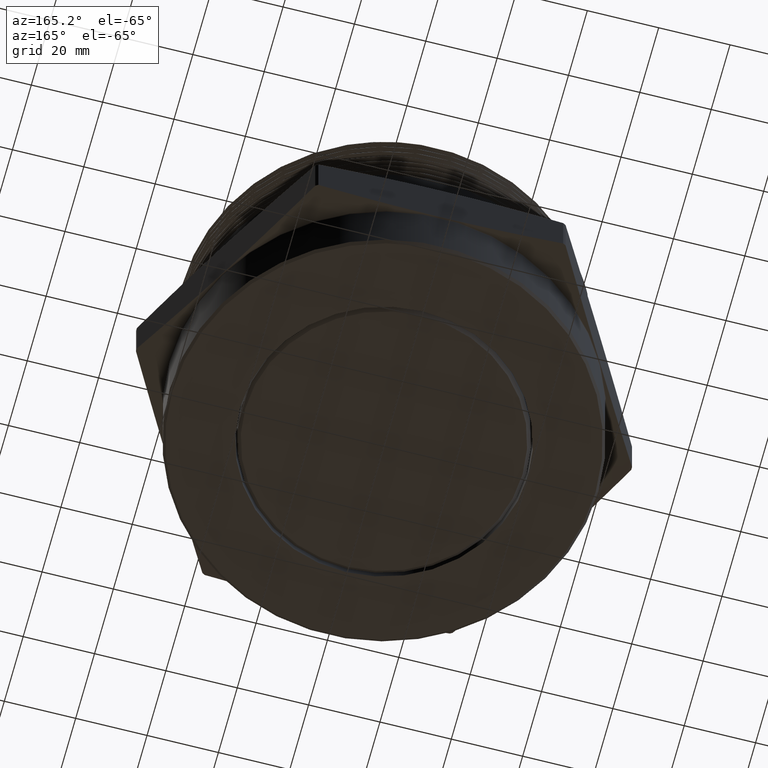
[diagram: clean part render]
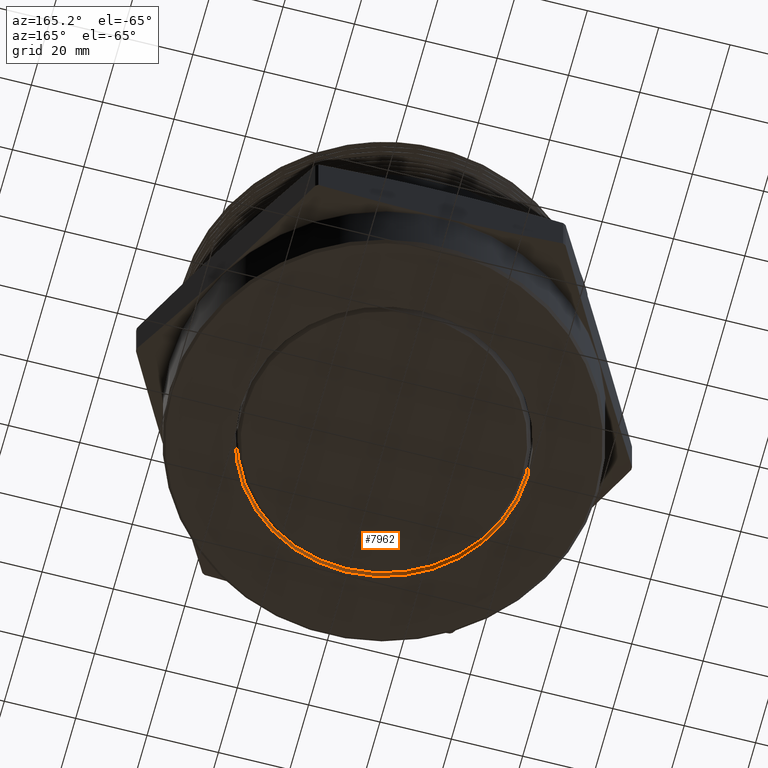
[diagram: same view with one face highlighted and labeled with its STEP entity id]
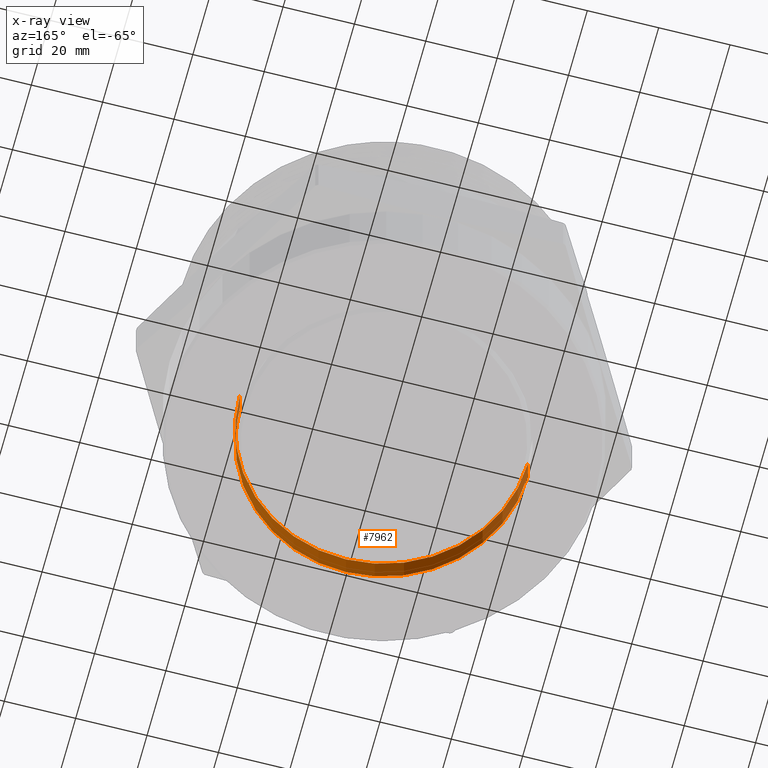
[diagram: x-ray of the same camera — body ghosted, the highlighted face saturated]
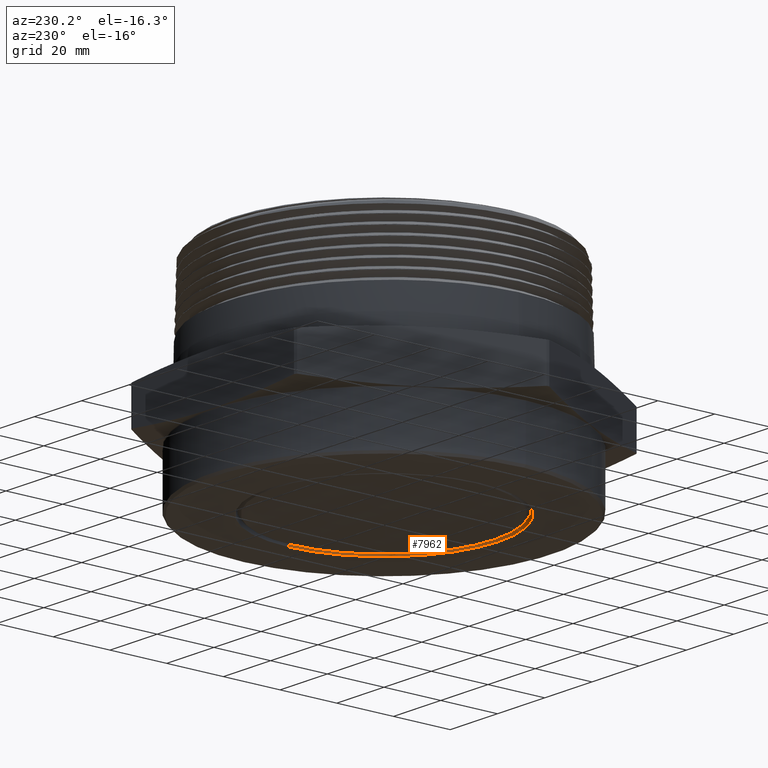
[diagram: same view with one face highlighted and labeled with its STEP entity id]
A machine part, auxiliary view. The second image highlights one B-rep face of the part: STEP entity #7962.
The next image is the same camera in x-ray: the body ghosted, the highlighted face saturated — about 0% of this face is hidden behind the body in this view.
A second angle (auxiliary view) of the same face is appended — the face is thin or edge-on in the first view.
In plain terms, the highlighted cylindrical surface (partial cylindrical patch) has radius 40.3606 mm, axis along (0, 0, -1).
Its self-contained STEP definition (entity closure, byte-faithful):
#1625 = ORIENTED_EDGE ( 'NONE', *, *, #8280, .F. ) ;
#1681 = CARTESIAN_POINT ( 'NONE',  ( -1.589000000000000200, 0.0000000000000000000, -0.7399999999999999900 ) ) ;
#1693 = CARTESIAN_POINT ( 'NONE',  ( 1.589000000000000200, 1.945963763845144500E-016, -0.7399999999999999900 ) ) ;
#1700 = CARTESIAN_POINT ( 'NONE',  ( 1.589000000000000000, 1.945963763845144300E-016, -0.4199999999999999800 ) ) ;
#1706 = CARTESIAN_POINT ( 'NONE',  ( -1.589000000000000000, 0.0000000000000000000, -0.4199999999999999800 ) ) ;
#1941 = ORIENTED_EDGE ( 'NONE', *, *, #8279, .T. ) ;
#2067 = VERTEX_POINT ( 'NONE', #1681 ) ;
#2068 = VERTEX_POINT ( 'NONE', #1693 ) ;
#2075 = VERTEX_POINT ( 'NONE', #1700 ) ;
#2081 = VERTEX_POINT ( 'NONE', #1706 ) ;
#2676 = LINE ( 'NONE', #3725, #2680 ) ;
#2678 = CIRCLE ( 'NONE', #2776, 1.589000000000000200 ) ;
#2680 = VECTOR ( 'NONE', #3723, 39.37007874015748100 ) ;
#2681 = LINE ( 'NONE', #3729, #2683 ) ;
#2683 = VECTOR ( 'NONE', #3724, 39.37007874015748100 ) ;
#2728 = AXIS2_PLACEMENT_3D ( 'NONE', #5865, #5866, #5864 ) ;
#2776 = AXIS2_PLACEMENT_3D ( 'NONE', #3732, #3733, #3734 ) ;
#2805 = AXIS2_PLACEMENT_3D ( 'NONE', #4271, #4272, #4273 ) ;
#2836 = EDGE_LOOP ( 'NONE', ( #2983, #8412, #1941, #1625 ) ) ;
#2969 = FACE_OUTER_BOUND ( 'NONE', #2836, .T. ) ;
#2976 = CYLINDRICAL_SURFACE ( 'NONE', #2728, 1.589000000000000000 ) ;
#2983 = ORIENTED_EDGE ( 'NONE', *, *, #8342, .T. ) ;
#3723 = DIRECTION ( 'NONE',  ( 2.070959839171675800E-018, -0.0000000000000000000, -1.000000000000000000 ) ) ;
#3724 = DIRECTION ( 'NONE',  ( 2.070959839171675800E-018, -0.0000000000000000000, -1.000000000000000000 ) ) ;
#3725 = CARTESIAN_POINT ( 'NONE',  ( 1.589000000000000000, 1.945963763845144300E-016, -0.7399999999999999900 ) ) ;
#3729 = CARTESIAN_POINT ( 'NONE',  ( -1.589000000000000000, 0.0000000000000000000, -0.7399999999999999900 ) ) ;
#3732 = CARTESIAN_POINT ( 'NONE',  ( 2.449293598294803500E-018, 0.0000000000000000000, -0.7399999999999999900 ) ) ;
#3733 = DIRECTION ( 'NONE',  ( 2.070959839171675800E-018, -0.0000000000000000000, -1.000000000000000000 ) ) ;
#3734 = DIRECTION ( 'NONE',  ( -1.000000000000000000, 0.0000000000000000000, 0.0000000000000000000 ) ) ;
#4271 = CARTESIAN_POINT ( 'NONE',  ( 1.786586449759867000E-018, 0.0000000000000000000, -0.4199999999999999800 ) ) ;
#4272 = DIRECTION ( 'NONE',  ( -2.070959839171675800E-018, 0.0000000000000000000, 1.000000000000000000 ) ) ;
#4273 = DIRECTION ( 'NONE',  ( 1.000000000000000000, 0.0000000000000000000, 0.0000000000000000000 ) ) ;
#5037 = CIRCLE ( 'NONE', #2805, 1.589000000000000000 ) ;
#5864 = DIRECTION ( 'NONE',  ( -1.000000000000000000, 0.0000000000000000000, 0.0000000000000000000 ) ) ;
#5865 = CARTESIAN_POINT ( 'NONE',  ( 2.449293598294803500E-018, 0.0000000000000000000, -0.7399999999999999900 ) ) ;
#5866 = DIRECTION ( 'NONE',  ( 2.070959839171675800E-018, -0.0000000000000000000, -1.000000000000000000 ) ) ;
#7962 = ADVANCED_FACE ( 'NONE', ( #2969 ), #2976, .F. ) ;
#8278 = EDGE_CURVE ( 'NONE', #2075, #2068, #2676, .T. ) ;
#8279 = EDGE_CURVE ( 'NONE', #2068, #2067, #2678, .T. ) ;
#8280 = EDGE_CURVE ( 'NONE', #2081, #2067, #2681, .T. ) ;
#8342 = EDGE_CURVE ( 'NONE', #2081, #2075, #5037, .T. ) ;
#8412 = ORIENTED_EDGE ( 'NONE', *, *, #8278, .T. ) ;